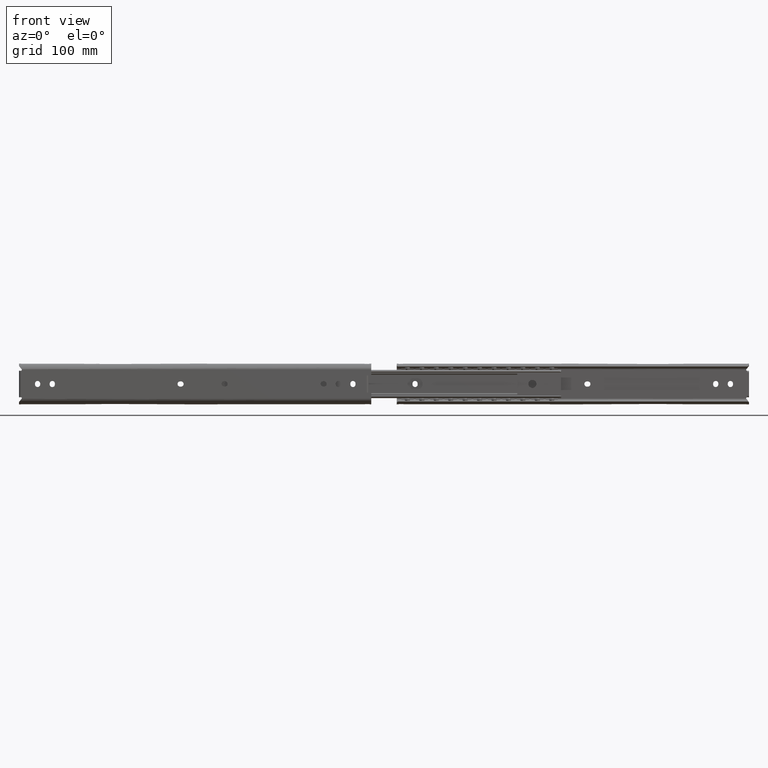
[diagram: clean part render]
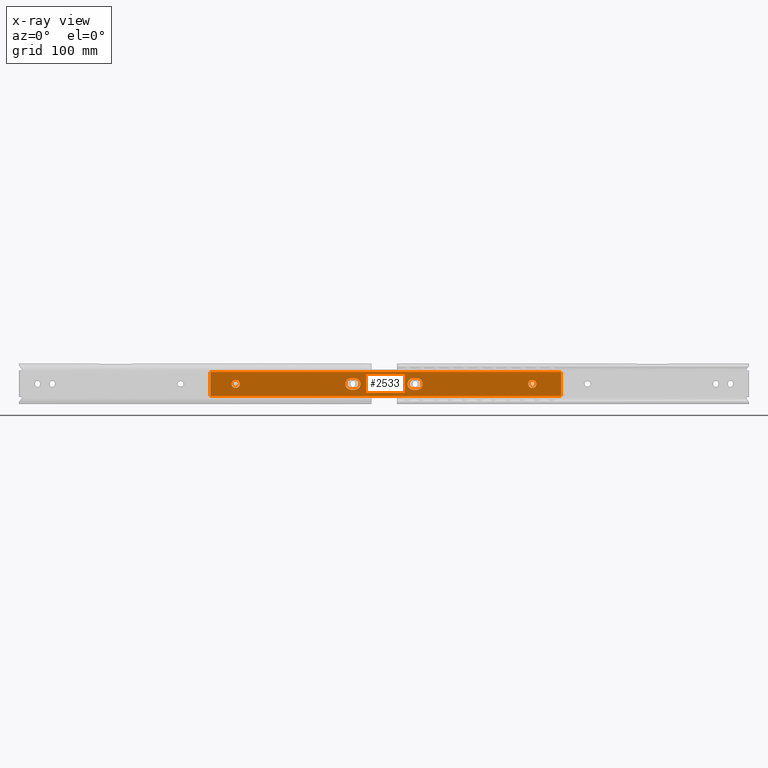
[diagram: x-ray — body ghosted, one internal face saturated and labeled with its STEP entity id]
A machine part, front view, then the same camera in x-ray: the body is ghosted and one INTERNAL B-rep face — a face not visible from any outside direction — is saturated and labeled: STEP entity #2533.
In plain terms, the highlighted face is a freeform B-spline surface patch.
Its self-contained STEP definition (entity closure, byte-faithful):
#96=CARTESIAN_POINT('',(-191.099866730676210,-9.599999999999840,-0.030542879794727));
#97=VERTEX_POINT('',#96);
#103=CARTESIAN_POINT('',(-187.599999999999990,-9.599999999999840,3.500000000000000));
#104=VERTEX_POINT('',#103);
#105=CARTESIAN_POINT('',(-187.599999999999990,-9.599999999999840,3.500000000000000));
#106=CARTESIAN_POINT('',(-191.099999999999970,-9.599999999999842,3.500000000000000));
#107=CARTESIAN_POINT('',(-191.099999999999990,-9.599999999999840,6.123032E-018));
#108=CARTESIAN_POINT('',(-191.099999999999970,-9.599999999999840,-0.015271733423197));
#109=CARTESIAN_POINT('',(-191.099866730676130,-9.599999999999840,-0.030542879794727));
#117=(BOUNDED_CURVE()B_SPLINE_CURVE(2,(#105,#106,#107,#108,#109),.UNSPECIFIED.,.F.,.U.)B_SPLINE_CURVE_WITH_KNOTS((3,2,3),(0.500000000000000,0.750000000000000,0.751539894893675),.UNSPECIFIED.)CURVE()GEOMETRIC_REPRESENTATION_ITEM()RATIONAL_B_SPLINE_CURVE((1.0,0.707106781186547,1.0,0.998195900911828,0.996414026807445))REPRESENTATION_ITEM(''));
#118=EDGE_CURVE('',#104,#97,#117,.T.);
#120=CARTESIAN_POINT('',(-184.127068253013390,-9.599999999999840,0.434448018493451));
#121=VERTEX_POINT('',#120);
#122=CARTESIAN_POINT('',(-184.127068253013390,-9.599999999999840,0.434448018493451));
#123=CARTESIAN_POINT('',(-184.510554919581210,-9.599999999999840,3.500000000000000));
#124=CARTESIAN_POINT('',(-187.599999999999990,-9.599999999999840,3.500000000000000));
#132=(BOUNDED_CURVE()B_SPLINE_CURVE(2,(#122,#123,#124),.UNSPECIFIED.,.F.,.U.)B_SPLINE_CURVE_WITH_KNOTS((3,3),(0.271473930059812,0.500000000000000),.UNSPECIFIED.)CURVE()GEOMETRIC_REPRESENTATION_ITEM()RATIONAL_B_SPLINE_CURVE((0.954005428161176,0.732265055169721,1.0))REPRESENTATION_ITEM(''));
#133=EDGE_CURVE('',#121,#104,#132,.T.);
#183=CARTESIAN_POINT('',(-187.599999999999990,-9.599999999999840,-3.500000000000000));
#184=VERTEX_POINT('',#183);
#185=CARTESIAN_POINT('',(-187.599999999999990,-9.599999999999840,-3.500000000000000));
#186=CARTESIAN_POINT('',(-184.099999999999990,-9.599999999999842,-3.500000000000000));
#187=CARTESIAN_POINT('',(-184.099999999999990,-9.599999999999840,6.123032E-018));
#188=CARTESIAN_POINT('',(-184.099999999999970,-9.599999999999840,0.218067257712552));
#189=CARTESIAN_POINT('',(-184.127068253013390,-9.599999999999840,0.434448018493451));
#197=(BOUNDED_CURVE()B_SPLINE_CURVE(2,(#185,#186,#187,#188,#189),.UNSPECIFIED.,.F.,.U.)B_SPLINE_CURVE_WITH_KNOTS((3,2,3),(0.0,0.250000000000000,0.271473930059812),.UNSPECIFIED.)CURVE()GEOMETRIC_REPRESENTATION_ITEM()RATIONAL_B_SPLINE_CURVE((1.0,0.707106781186547,1.0,0.974841726016827,0.954005428161176))REPRESENTATION_ITEM(''));
#198=EDGE_CURVE('',#184,#121,#197,.T.);
#200=CARTESIAN_POINT('',(-191.099866730676150,-9.599999999999840,-0.030542879794727));
#201=CARTESIAN_POINT('',(-191.069589226077200,-9.599999999999842,-3.500000000000000));
#202=CARTESIAN_POINT('',(-187.599999999999990,-9.599999999999840,-3.500000000000000));
#210=(BOUNDED_CURVE()B_SPLINE_CURVE(2,(#200,#201,#202),.UNSPECIFIED.,.F.,.U.)B_SPLINE_CURVE_WITH_KNOTS((3,3),(0.751539894893675,1.0),.UNSPECIFIED.)CURVE()GEOMETRIC_REPRESENTATION_ITEM()RATIONAL_B_SPLINE_CURVE((0.996414026807446,0.708910880274719,1.0))REPRESENTATION_ITEM(''));
#211=EDGE_CURVE('',#97,#184,#210,.T.);
#286=CARTESIAN_POINT('',(-447.893471794003290,-9.599999999999840,0.213669896110550));
#287=VERTEX_POINT('',#286);
#293=CARTESIAN_POINT('',(-444.399999999999980,-9.599999999999840,3.500000000000000));
#294=VERTEX_POINT('',#293);
#295=CARTESIAN_POINT('',(-444.399999999999980,-9.599999999999840,3.500000000000000));
#296=CARTESIAN_POINT('',(-447.692471219556180,-9.599999999999842,3.499999999999999));
#297=CARTESIAN_POINT('',(-447.893471794003230,-9.599999999999840,0.213669896110550));
#305=(BOUNDED_CURVE()B_SPLINE_CURVE(2,(#295,#296,#297),.UNSPECIFIED.,.F.,.U.)B_SPLINE_CURVE_WITH_KNOTS((3,3),(0.500000000000000,0.739332961477536),.UNSPECIFIED.)CURVE()GEOMETRIC_REPRESENTATION_ITEM()RATIONAL_B_SPLINE_CURVE((1.0,0.719603994178753,0.976072040034879))REPRESENTATION_ITEM(''));
#306=EDGE_CURVE('',#294,#287,#305,.T.);
#308=CARTESIAN_POINT('',(-440.924466658915890,-9.599999999999842,-0.413119831298840));
#309=VERTEX_POINT('',#308);
#310=CARTESIAN_POINT('',(-440.924466658915890,-9.599999999999842,-0.413119831298840));
#311=CARTESIAN_POINT('',(-440.900000000000090,-9.599999999999840,-0.207284428887591));
#312=CARTESIAN_POINT('',(-440.899999999999980,-9.599999999999840,6.123032E-018));
#313=CARTESIAN_POINT('',(-440.899999999999980,-9.599999999999842,3.500000000000000));
#314=CARTESIAN_POINT('',(-444.399999999999980,-9.599999999999840,3.500000000000000));
#322=(BOUNDED_CURVE()B_SPLINE_CURVE(2,(#310,#311,#312,#313,#314),.UNSPECIFIED.,.F.,.U.)B_SPLINE_CURVE_WITH_KNOTS((3,2,3),(0.229562472543095,0.250000000000000,0.500000000000000),.UNSPECIFIED.)CURVE()GEOMETRIC_REPRESENTATION_ITEM()RATIONAL_B_SPLINE_CURVE((0.956026752281649,0.976055947194235,1.0,0.707106781186547,1.0))REPRESENTATION_ITEM(''));
#323=EDGE_CURVE('',#309,#294,#322,.T.);
#367=CARTESIAN_POINT('',(-444.399999999999980,-9.599999999999840,-3.500000000000000));
#368=VERTEX_POINT('',#367);
#369=CARTESIAN_POINT('',(-444.399999999999980,-9.599999999999840,-3.500000000000000));
#370=CARTESIAN_POINT('',(-441.291389177184950,-9.599999999999840,-3.500000000000000));
#371=CARTESIAN_POINT('',(-440.924466658915950,-9.599999999999842,-0.413119831298840));
#379=(BOUNDED_CURVE()B_SPLINE_CURVE(2,(#369,#370,#371),.UNSPECIFIED.,.F.,.U.)B_SPLINE_CURVE_WITH_KNOTS((3,3),(0.0,0.229562472543095),.UNSPECIFIED.)CURVE()GEOMETRIC_REPRESENTATION_ITEM()RATIONAL_B_SPLINE_CURVE((1.0,0.731050833992312,0.956026752281649))REPRESENTATION_ITEM(''));
#380=EDGE_CURVE('',#368,#309,#379,.T.);
#382=CARTESIAN_POINT('',(-447.893471794003350,-9.599999999999840,0.213669896110550));
#383=CARTESIAN_POINT('',(-447.900000000000150,-9.599999999999842,0.106934679305310));
#384=CARTESIAN_POINT('',(-447.899999999999980,-9.599999999999840,6.123032E-018));
#385=CARTESIAN_POINT('',(-447.900000000000150,-9.599999999999842,-3.500000000000000));
#386=CARTESIAN_POINT('',(-444.399999999999980,-9.599999999999840,-3.500000000000000));
#394=(BOUNDED_CURVE()B_SPLINE_CURVE(2,(#382,#383,#384,#385,#386),.UNSPECIFIED.,.F.,.U.)B_SPLINE_CURVE_WITH_KNOTS((3,2,3),(0.739332961477536,0.750000000000000,1.0),.UNSPECIFIED.)CURVE()GEOMETRIC_REPRESENTATION_ITEM()RATIONAL_B_SPLINE_CURVE((0.976072040034877,0.987502787007793,1.0,0.707106781186547,1.0))REPRESENTATION_ITEM(''));
#395=EDGE_CURVE('',#287,#368,#394,.T.);
#434=CARTESIAN_POINT('',(-287.600000000000020,-9.599999999999840,-5.0));
#435=VERTEX_POINT('',#434);
#460=CARTESIAN_POINT('',(-287.600000000000020,-9.599999999999840,5.0));
#461=VERTEX_POINT('',#460);
#467=CARTESIAN_POINT('',(-287.600000000000020,-9.599999999999840,-5.0));
#468=CARTESIAN_POINT('',(-282.600000000000080,-9.599999999999840,-5.000000000000001));
#469=CARTESIAN_POINT('',(-282.600000000000020,-9.599999999999840,6.123032E-018));
#470=CARTESIAN_POINT('',(-282.600000000000080,-9.599999999999840,5.000000000000001));
#471=CARTESIAN_POINT('',(-287.600000000000020,-9.599999999999840,5.0));
#479=(BOUNDED_CURVE()B_SPLINE_CURVE(2,(#467,#468,#469,#470,#471),.UNSPECIFIED.,.F.,.U.)B_SPLINE_CURVE_WITH_KNOTS((3,2,3),(0.0,0.500000000000000,1.0),.UNSPECIFIED.)CURVE()GEOMETRIC_REPRESENTATION_ITEM()RATIONAL_B_SPLINE_CURVE((1.0,0.707106781186548,1.0,0.707106781186548,1.0))REPRESENTATION_ITEM(''));
#480=EDGE_CURVE('',#435,#461,#479,.T.);
#490=CARTESIAN_POINT('',(-290.600000000000020,-9.599999999999840,-5.0));
#491=VERTEX_POINT('',#490);
#505=CARTESIAN_POINT('',(-290.600000000000020,-9.599999999999840,-5.0));
#506=CARTESIAN_POINT('',(-287.600000000000020,-9.599999999999840,-5.0));
#507=QUASI_UNIFORM_CURVE('',1,(#505,#506),.UNSPECIFIED.,.F.,.U.);
#508=EDGE_CURVE('',#491,#435,#507,.T.);
#531=CARTESIAN_POINT('',(-290.600000000000020,-9.599999999999840,5.0));
#532=VERTEX_POINT('',#531);
#556=CARTESIAN_POINT('',(-290.600000000000020,-9.599999999999840,5.0));
#557=CARTESIAN_POINT('',(-295.600000000000080,-9.599999999999840,5.000000000000001));
#558=CARTESIAN_POINT('',(-295.600000000000020,-9.599999999999840,6.123032E-018));
#559=CARTESIAN_POINT('',(-295.600000000000080,-9.599999999999840,-5.000000000000001));
#560=CARTESIAN_POINT('',(-290.600000000000020,-9.599999999999840,-5.0));
#568=(BOUNDED_CURVE()B_SPLINE_CURVE(2,(#556,#557,#558,#559,#560),.UNSPECIFIED.,.F.,.U.)B_SPLINE_CURVE_WITH_KNOTS((3,2,3),(0.0,0.500000000000000,1.0),.UNSPECIFIED.)CURVE()GEOMETRIC_REPRESENTATION_ITEM()RATIONAL_B_SPLINE_CURVE((1.0,0.707106781186548,1.0,0.707106781186548,1.0))REPRESENTATION_ITEM(''));
#569=EDGE_CURVE('',#532,#491,#568,.T.);
#586=CARTESIAN_POINT('',(-287.600000000000020,-9.599999999999840,5.0));
#587=CARTESIAN_POINT('',(-290.600000000000020,-9.599999999999840,5.0));
#588=QUASI_UNIFORM_CURVE('',1,(#586,#587),.UNSPECIFIED.,.F.,.U.);
#589=EDGE_CURVE('',#461,#532,#588,.T.);
#612=CARTESIAN_POINT('',(-344.399999999999980,-9.599999999999840,5.0));
#613=VERTEX_POINT('',#612);
#638=CARTESIAN_POINT('',(-344.399999999999980,-9.599999999999840,-5.0));
#639=VERTEX_POINT('',#638);
#645=CARTESIAN_POINT('',(-344.399999999999980,-9.599999999999840,5.0));
#646=CARTESIAN_POINT('',(-349.399999999999980,-9.599999999999840,5.000000000000001));
#647=CARTESIAN_POINT('',(-349.399999999999980,-9.599999999999840,6.123032E-018));
#648=CARTESIAN_POINT('',(-349.399999999999980,-9.599999999999840,-5.000000000000001));
#649=CARTESIAN_POINT('',(-344.399999999999980,-9.599999999999840,-5.0));
#657=(BOUNDED_CURVE()B_SPLINE_CURVE(2,(#645,#646,#647,#648,#649),.UNSPECIFIED.,.F.,.U.)B_SPLINE_CURVE_WITH_KNOTS((3,2,3),(0.0,0.500000000000000,1.0),.UNSPECIFIED.)CURVE()GEOMETRIC_REPRESENTATION_ITEM()RATIONAL_B_SPLINE_CURVE((1.0,0.707106781186548,1.0,0.707106781186548,1.0))REPRESENTATION_ITEM(''));
#658=EDGE_CURVE('',#613,#639,#657,.T.);
#676=CARTESIAN_POINT('',(-341.399999999999980,-9.599999999999840,-5.0));
#677=VERTEX_POINT('',#676);
#683=CARTESIAN_POINT('',(-344.399999999999980,-9.599999999999840,-5.0));
#684=CARTESIAN_POINT('',(-341.399999999999980,-9.599999999999840,-5.0));
#685=QUASI_UNIFORM_CURVE('',1,(#683,#684),.UNSPECIFIED.,.F.,.U.);
#686=EDGE_CURVE('',#639,#677,#685,.T.);
#727=CARTESIAN_POINT('',(-341.399999999999980,-9.599999999999840,5.0));
#728=VERTEX_POINT('',#727);
#734=CARTESIAN_POINT('',(-341.399999999999980,-9.599999999999840,-5.0));
#735=CARTESIAN_POINT('',(-336.399999999999980,-9.599999999999840,-5.000000000000001));
#736=CARTESIAN_POINT('',(-336.399999999999980,-9.599999999999840,6.123032E-018));
#737=CARTESIAN_POINT('',(-336.399999999999980,-9.599999999999840,5.000000000000001));
#738=CARTESIAN_POINT('',(-341.399999999999980,-9.599999999999840,5.0));
#746=(BOUNDED_CURVE()B_SPLINE_CURVE(2,(#734,#735,#736,#737,#738),.UNSPECIFIED.,.F.,.U.)B_SPLINE_CURVE_WITH_KNOTS((3,2,3),(0.0,0.500000000000000,1.0),.UNSPECIFIED.)CURVE()GEOMETRIC_REPRESENTATION_ITEM()RATIONAL_B_SPLINE_CURVE((1.0,0.707106781186548,1.0,0.707106781186548,1.0))REPRESENTATION_ITEM(''));
#747=EDGE_CURVE('',#677,#728,#746,.T.);
#764=CARTESIAN_POINT('',(-341.399999999999980,-9.599999999999840,5.0));
#765=CARTESIAN_POINT('',(-344.399999999999980,-9.599999999999840,5.0));
#766=QUASI_UNIFORM_CURVE('',1,(#764,#765),.UNSPECIFIED.,.F.,.U.);
#767=EDGE_CURVE('',#728,#613,#766,.T.);
#1877=CARTESIAN_POINT('',(-162.599999999999990,-9.599999999999820,-10.427061000000000));
#1878=VERTEX_POINT('',#1877);
#1894=CARTESIAN_POINT('',(-162.599999999999990,-9.599999999999790,10.427061000000000));
#1895=VERTEX_POINT('',#1894);
#1896=CARTESIAN_POINT('',(-162.599999999999990,-9.599999999999820,-10.427061000000000));
#1897=CARTESIAN_POINT('',(-162.599999999999990,-9.599999999999790,10.427061000000000));
#1898=QUASI_UNIFORM_CURVE('',1,(#1896,#1897),.UNSPECIFIED.,.F.,.U.);
#1899=EDGE_CURVE('',#1878,#1895,#1898,.T.);
#2053=CARTESIAN_POINT('',(-466.399999999999980,-9.599999999999790,10.427061000000000));
#2054=VERTEX_POINT('',#2053);
#2070=CARTESIAN_POINT('',(-466.399999999999980,-9.599999999999820,-10.427061000000000));
#2071=VERTEX_POINT('',#2070);
#2072=CARTESIAN_POINT('',(-466.399999999999980,-9.599999999999820,-10.427061000000000));
#2073=CARTESIAN_POINT('',(-466.399999999999980,-9.599999999999790,10.427061000000000));
#2074=QUASI_UNIFORM_CURVE('',1,(#2072,#2073),.UNSPECIFIED.,.F.,.U.);
#2075=EDGE_CURVE('',#2071,#2054,#2074,.T.);
#2219=CARTESIAN_POINT('',(-466.399999999999980,-9.599999999999790,10.427061000000000));
#2220=CARTESIAN_POINT('',(-162.599999999999990,-9.599999999999790,10.427061000000000));
#2221=QUASI_UNIFORM_CURVE('',1,(#2219,#2220),.UNSPECIFIED.,.F.,.U.);
#2222=EDGE_CURVE('',#2054,#1895,#2221,.T.);
#2250=CARTESIAN_POINT('',(-466.399999999999980,-9.599999999999820,-10.427061000000000));
#2251=CARTESIAN_POINT('',(-162.599999999999990,-9.599999999999820,-10.427061000000000));
#2252=QUASI_UNIFORM_CURVE('',1,(#2250,#2251),.UNSPECIFIED.,.F.,.U.);
#2253=EDGE_CURVE('',#2071,#1878,#2252,.T.);
#2498=CARTESIAN_POINT('',(-147.425197377924410,-9.599999999999799,11.468724549244239));
#2499=CARTESIAN_POINT('',(-147.425197377924410,-9.599999999999799,-11.468724922145000));
#2500=CARTESIAN_POINT('',(-481.574794473524610,-9.599999999999799,11.468724549244239));
#2501=CARTESIAN_POINT('',(-481.574794473524610,-9.599999999999799,-11.468724922145000));
#2502=B_SPLINE_SURFACE_WITH_KNOTS('',1,1,((#2498,#2500),(#2499,#2501)),.UNSPECIFIED.,.F.,.F.,.U.,(2,2),(2,2),(0.0,22.937449471389240),(0.0,334.149597095600200),.UNSPECIFIED.);
#2503=ORIENTED_EDGE('',*,*,#2075,.T.);
#2504=ORIENTED_EDGE('',*,*,#2222,.T.);
#2505=ORIENTED_EDGE('',*,*,#1899,.F.);
#2506=ORIENTED_EDGE('',*,*,#2253,.F.);
#2507=EDGE_LOOP('',(#2503,#2504,#2505,#2506));
#2508=FACE_OUTER_BOUND('',#2507,.T.);
#2509=ORIENTED_EDGE('',*,*,#747,.T.);
#2510=ORIENTED_EDGE('',*,*,#767,.T.);
#2511=ORIENTED_EDGE('',*,*,#658,.T.);
#2512=ORIENTED_EDGE('',*,*,#686,.T.);
#2513=EDGE_LOOP('',(#2509,#2510,#2511,#2512));
#2514=FACE_BOUND('',#2513,.T.);
#2515=ORIENTED_EDGE('',*,*,#480,.T.);
#2516=ORIENTED_EDGE('',*,*,#589,.T.);
#2517=ORIENTED_EDGE('',*,*,#569,.T.);
#2518=ORIENTED_EDGE('',*,*,#508,.T.);
#2519=EDGE_LOOP('',(#2515,#2516,#2517,#2518));
#2520=FACE_BOUND('',#2519,.T.);
#2521=ORIENTED_EDGE('',*,*,#306,.T.);
#2522=ORIENTED_EDGE('',*,*,#395,.T.);
#2523=ORIENTED_EDGE('',*,*,#380,.T.);
#2524=ORIENTED_EDGE('',*,*,#323,.T.);
#2525=EDGE_LOOP('',(#2521,#2522,#2523,#2524));
#2526=FACE_BOUND('',#2525,.T.);
#2527=ORIENTED_EDGE('',*,*,#118,.T.);
#2528=ORIENTED_EDGE('',*,*,#211,.T.);
#2529=ORIENTED_EDGE('',*,*,#198,.T.);
#2530=ORIENTED_EDGE('',*,*,#133,.T.);
#2531=EDGE_LOOP('',(#2527,#2528,#2529,#2530));
#2532=FACE_BOUND('',#2531,.T.);
#2533=ADVANCED_FACE('',(#2508,#2514,#2520,#2526,#2532),#2502,.T.);